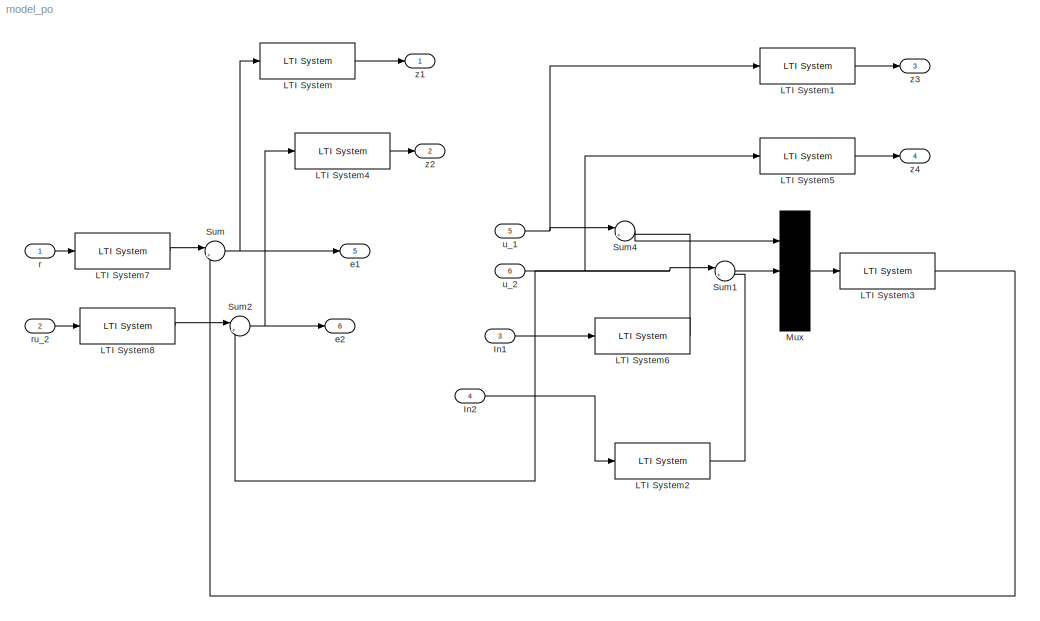
MODEL model_po
KIND model
BLOCK [Inport] In1
  IconDisplay = Port number
  Port = 3
BLOCK [Inport] In2
  IconDisplay = Port number
  Port = 4
BLOCK [Reference] LTI System  REF=cstblocks/LTI System
  FunctionWithSeparateData = off
  IC = 0
  Ports = [1, 1]
  RTWMemSecDataConstants = Inherit from model
  RTWMemSecDataInternal = Inherit from model
  RTWMemSecDataParameters = Inherit from model
  RTWMemSecFuncExecute = Inherit from model
  RTWMemSecFuncInitTerm = Inherit from model
  ShowPortLabels = FromPortIcon
  SourceBlock = cstblocks/LTI System
  SourceType = LTI Block
  SystemSampleTime = -1
  sys = W11
BLOCK [Reference] LTI System1  REF=cstblocks/LTI System
  FunctionWithSeparateData = off
  IC = 0
  Ports = [1, 1]
  RTWMemSecDataConstants = Inherit from model
  RTWMemSecDataInternal = Inherit from model
  RTWMemSecDataParameters = Inherit from model
  RTWMemSecFuncExecute = Inherit from model
  RTWMemSecFuncInitTerm = Inherit from model
  ShowPortLabels = FromPortIcon
  SourceBlock = cstblocks/LTI System
  SourceType = LTI Block
  SystemSampleTime = -1
  sys = W21
BLOCK [Reference] LTI System2  REF=cstblocks/LTI System
  FunctionWithSeparateData = off
  IC = 0
  Ports = [1, 1]
  RTWMemSecDataConstants = Inherit from model
  RTWMemSecDataInternal = Inherit from model
  RTWMemSecDataParameters = Inherit from model
  RTWMemSecFuncExecute = Inherit from model
  RTWMemSecFuncInitTerm = Inherit from model
  ShowPortLabels = FromPortIcon
  SourceBlock = cstblocks/LTI System
  SourceType = LTI Block
  SystemSampleTime = -1
  sys = Wp2
BLOCK [Reference] LTI System3  REF=cstblocks/LTI System
  FunctionWithSeparateData = off
  IC = 0
  Ports = [1, 1]
  RTWMemSecDataConstants = Inherit from model
  RTWMemSecDataInternal = Inherit from model
  RTWMemSecDataParameters = Inherit from model
  RTWMemSecFuncExecute = Inherit from model
  RTWMemSecFuncInitTerm = Inherit from model
  ShowPortLabels = FromPortIcon
  SourceBlock = cstblocks/LTI System
  SourceType = LTI Block
  SystemSampleTime = -1
  sys = sys_synt_ss
BLOCK [Reference] LTI System4  REF=cstblocks/LTI System
  FunctionWithSeparateData = off
  IC = 0
  Ports = [1, 1]
  RTWMemSecDataConstants = Inherit from model
  RTWMemSecDataInternal = Inherit from model
  RTWMemSecDataParameters = Inherit from model
  RTWMemSecFuncExecute = Inherit from model
  RTWMemSecFuncInitTerm = Inherit from model
  ShowPortLabels = FromPortIcon
  SourceBlock = cstblocks/LTI System
  SourceType = LTI Block
  SystemSampleTime = -1
  sys = W12
BLOCK [Reference] LTI System5  REF=cstblocks/LTI System
  FunctionWithSeparateData = off
  IC = 0
  Ports = [1, 1]
  RTWMemSecDataConstants = Inherit from model
  RTWMemSecDataInternal = Inherit from model
  RTWMemSecDataParameters = Inherit from model
  RTWMemSecFuncExecute = Inherit from model
  RTWMemSecFuncInitTerm = Inherit from model
  ShowPortLabels = FromPortIcon
  SourceBlock = cstblocks/LTI System
  SourceType = LTI Block
  SystemSampleTime = -1
  sys = W22
BLOCK [Reference] LTI System6  REF=cstblocks/LTI System
  FunctionWithSeparateData = off
  IC = 0
  Ports = [1, 1]
  RTWMemSecDataConstants = Inherit from model
  RTWMemSecDataInternal = Inherit from model
  RTWMemSecDataParameters = Inherit from model
  RTWMemSecFuncExecute = Inherit from model
  RTWMemSecFuncInitTerm = Inherit from model
  ShowPortLabels = FromPortIcon
  SourceBlock = cstblocks/LTI System
  SourceType = LTI Block
  SystemSampleTime = -1
  sys = Wp1
BLOCK [Reference] LTI System7  REF=cstblocks/LTI System
  FunctionWithSeparateData = off
  IC = 0
  Ports = [1, 1]
  RTWMemSecDataConstants = Inherit from model
  RTWMemSecDataInternal = Inherit from model
  RTWMemSecDataParameters = Inherit from model
  RTWMemSecFuncExecute = Inherit from model
  RTWMemSecFuncInitTerm = Inherit from model
  ShowPortLabels = FromPortIcon
  SourceBlock = cstblocks/LTI System
  SourceType = LTI Block
  SystemSampleTime = -1
  sys = Wpe1
BLOCK [Reference] LTI System8  REF=cstblocks/LTI System
  FunctionWithSeparateData = off
  IC = 0
  Ports = [1, 1]
  RTWMemSecDataConstants = Inherit from model
  RTWMemSecDataInternal = Inherit from model
  RTWMemSecDataParameters = Inherit from model
  RTWMemSecFuncExecute = Inherit from model
  RTWMemSecFuncInitTerm = Inherit from model
  ShowPortLabels = FromPortIcon
  SourceBlock = cstblocks/LTI System
  SourceType = LTI Block
  SystemSampleTime = -1
  sys = Wpe2
BLOCK [Mux] Mux
  Inputs = 3
  Ports = [3, 1]
BLOCK [Sum] Sum
  CollapseMode = All dimensions
  IconShape = round
  Inputs = |+-
  Ports = [2, 1]
BLOCK [Sum] Sum1
  CollapseMode = All dimensions
  IconShape = round
  Inputs = |+-
  Ports = [2, 1]
BLOCK [Sum] Sum2
  CollapseMode = All dimensions
  IconShape = round
  Inputs = |+-
  Ports = [2, 1]
BLOCK [Sum] Sum4
  CollapseMode = All dimensions
  IconShape = round
  Inputs = |+-
  Ports = [2, 1]
BLOCK [Outport] e1
  IconDisplay = Port number
  Port = 5
BLOCK [Outport] e2
  IconDisplay = Port number
  Port = 6
BLOCK [Inport] r
  IconDisplay = Port number
BLOCK [Inport] ru_2
  IconDisplay = Port number
  Port = 2
BLOCK [Inport] u_1
  IconDisplay = Port number
  Port = 5
BLOCK [Inport] u_2
  IconDisplay = Port number
  Port = 6
BLOCK [Outport] z1
  IconDisplay = Port number
BLOCK [Outport] z2
  IconDisplay = Port number
  Port = 2
BLOCK [Outport] z3
  IconDisplay = Port number
  Port = 3
BLOCK [Outport] z4
  IconDisplay = Port number
  Port = 4
LINE In1:1 -> LTI System6:1
LINE In2:1 -> LTI System2:1
LINE LTI System1:1 -> z3:1
LINE LTI System2:1 -> Sum1:2
LINE LTI System3:1 -> Sum:2
LINE LTI System4:1 -> z2:1
LINE LTI System5:1 -> z4:1
LINE LTI System6:1 -> Sum4:2
LINE LTI System7:1 -> Sum:1
LINE LTI System8:1 -> Sum2:1
LINE LTI System:1 -> z1:1
LINE Mux:1 -> LTI System3:1
LINE Sum1:1 -> Mux:2
NET Sum2:1 -> LTI System4:1, e2:1
LINE Sum4:1 -> Mux:1
NET Sum:1 -> LTI System:1, e1:1
LINE r:1 -> LTI System7:1
LINE ru_2:1 -> LTI System8:1
NET u_1:1 -> LTI System1:1, Sum4:1
NET u_2:1 -> LTI System5:1, Sum1:1, Sum2:2
note: NET lines group one-source signal fan-out (src -> all destinations, sorted); 1:1 wires keep LINE
